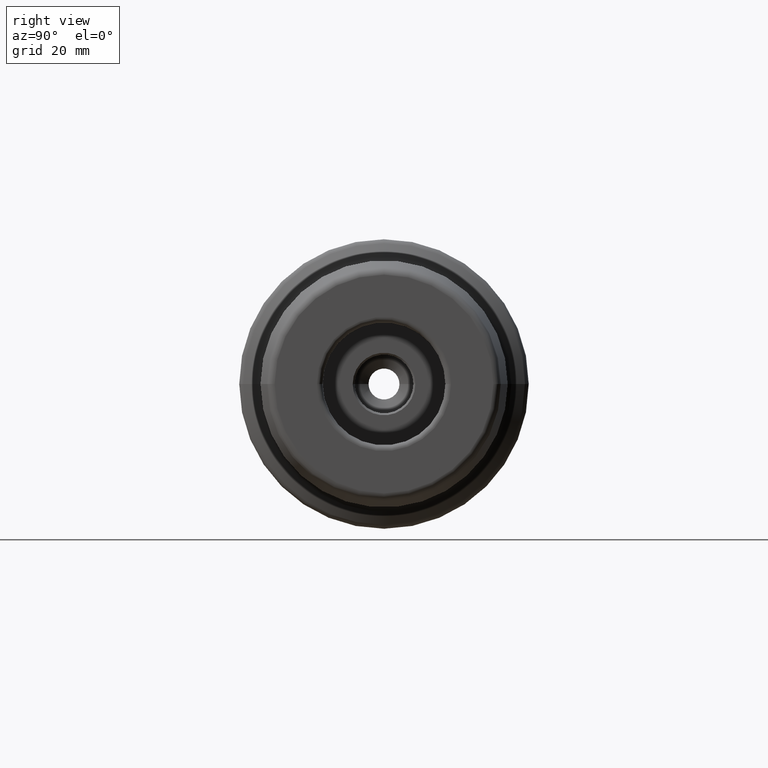
[diagram: clean part render]
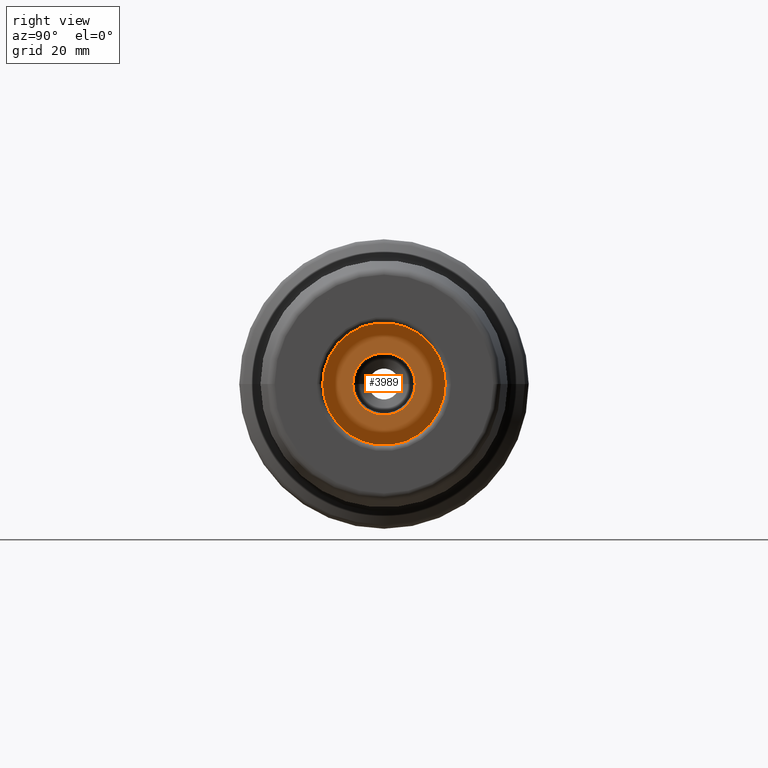
[diagram: same view with one face highlighted and labeled with its STEP entity id]
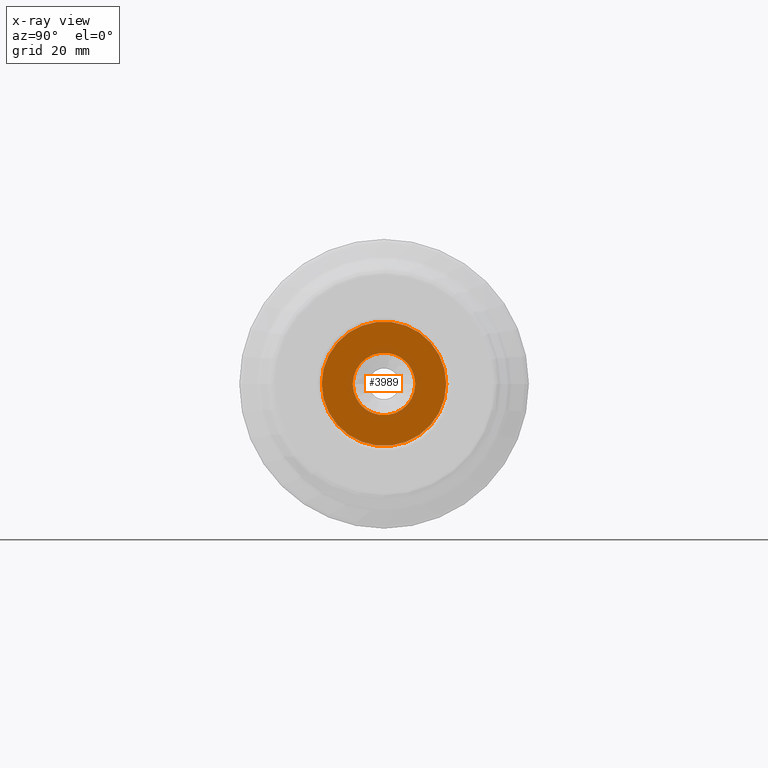
[diagram: x-ray of the same camera — body ghosted, the highlighted face saturated]
A machine part, right view. The second image highlights one B-rep face of the part: STEP entity #3989.
The next image is the same camera in x-ray: the body ghosted, the highlighted face saturated — about 4% of this face is hidden behind the body in this view.
In plain terms, the highlighted planar face has unit normal (-1, 0, 0).
Its self-contained STEP definition (entity closure, byte-faithful):
#403=CARTESIAN_POINT('',(2.441E0,0.E0,0.E0));
#404=DIRECTION('',(-1.E0,0.E0,0.E0));
#405=DIRECTION('',(0.E0,-1.E0,0.E0));
#406=AXIS2_PLACEMENT_3D('',#403,#404,#405);
#408=CARTESIAN_POINT('',(2.441E0,0.E0,0.E0));
#409=DIRECTION('',(-1.E0,0.E0,0.E0));
#410=DIRECTION('',(0.E0,1.E0,0.E0));
#411=AXIS2_PLACEMENT_3D('',#408,#409,#410);
#413=CARTESIAN_POINT('',(2.441E0,0.E0,0.E0));
#414=DIRECTION('',(1.E0,0.E0,0.E0));
#415=DIRECTION('',(0.E0,-1.E0,0.E0));
#416=AXIS2_PLACEMENT_3D('',#413,#414,#415);
#418=CARTESIAN_POINT('',(2.441E0,0.E0,0.E0));
#419=DIRECTION('',(1.E0,0.E0,0.E0));
#420=DIRECTION('',(0.E0,1.E0,0.E0));
#421=AXIS2_PLACEMENT_3D('',#418,#419,#420);
#3356=CARTESIAN_POINT('',(2.441E0,-6.35E-1,0.E0));
#3357=CARTESIAN_POINT('',(2.441E0,6.35E-1,0.E0));
#3358=VERTEX_POINT('',#3356);
#3359=VERTEX_POINT('',#3357);
#3444=CARTESIAN_POINT('',(2.441E0,-3.19E-1,0.E0));
#3445=CARTESIAN_POINT('',(2.441E0,3.19E-1,0.E0));
#3446=VERTEX_POINT('',#3444);
#3447=VERTEX_POINT('',#3445);
#3973=CARTESIAN_POINT('',(2.441E0,0.E0,0.E0));
#3974=DIRECTION('',(-1.E0,0.E0,0.E0));
#3975=DIRECTION('',(0.E0,-1.E0,0.E0));
#3976=AXIS2_PLACEMENT_3D('',#3973,#3974,#3975);
#3977=PLANE('',#3976);
#3979=ORIENTED_EDGE('',*,*,#3978,.T.);
#3981=ORIENTED_EDGE('',*,*,#3980,.T.);
#3982=EDGE_LOOP('',(#3979,#3981));
#3983=FACE_OUTER_BOUND('',#3982,.F.);
#3985=ORIENTED_EDGE('',*,*,#3984,.T.);
#3986=ORIENTED_EDGE('',*,*,#3963,.T.);
#3987=EDGE_LOOP('',(#3985,#3986));
#3988=FACE_BOUND('',#3987,.F.);
#3989=ADVANCED_FACE('',(#3983,#3988),#3977,.F.);
#407=CIRCLE('',#406,6.35E-1);
#412=CIRCLE('',#411,6.35E-1);
#417=CIRCLE('',#416,3.19E-1);
#422=CIRCLE('',#421,3.19E-1);
#3963=EDGE_CURVE('',#3447,#3446,#422,.T.);
#3978=EDGE_CURVE('',#3358,#3359,#407,.T.);
#3980=EDGE_CURVE('',#3359,#3358,#412,.T.);
#3984=EDGE_CURVE('',#3446,#3447,#417,.T.);